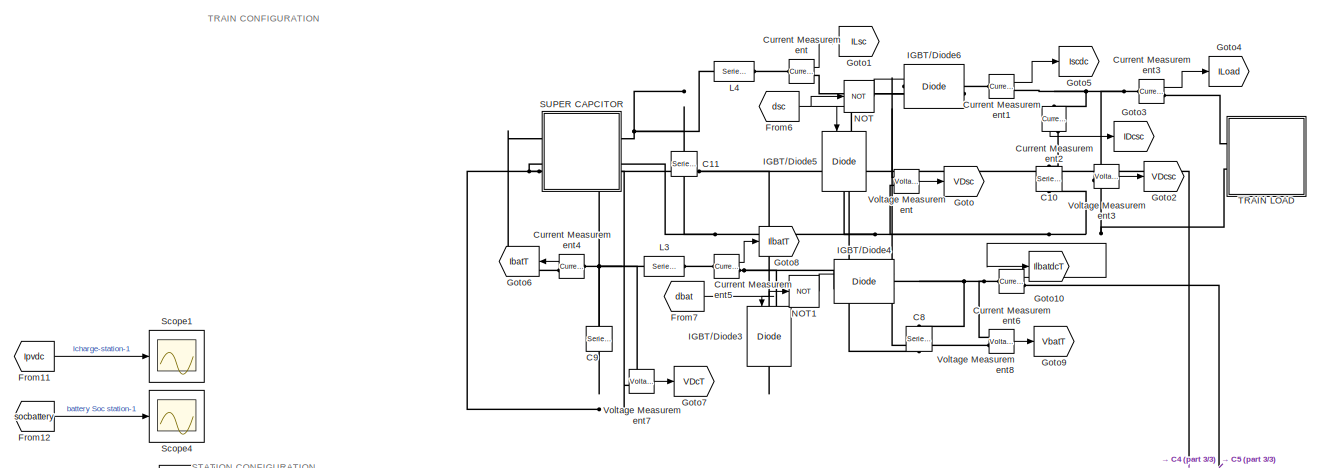
[diagram: root canvas - part 1/3, top center region]
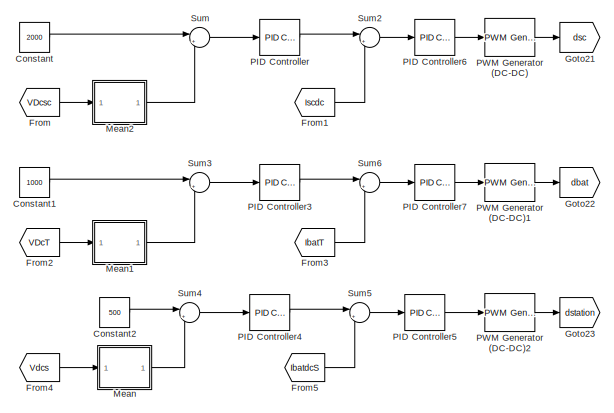
[diagram: root canvas - part 2/3, middle right region]
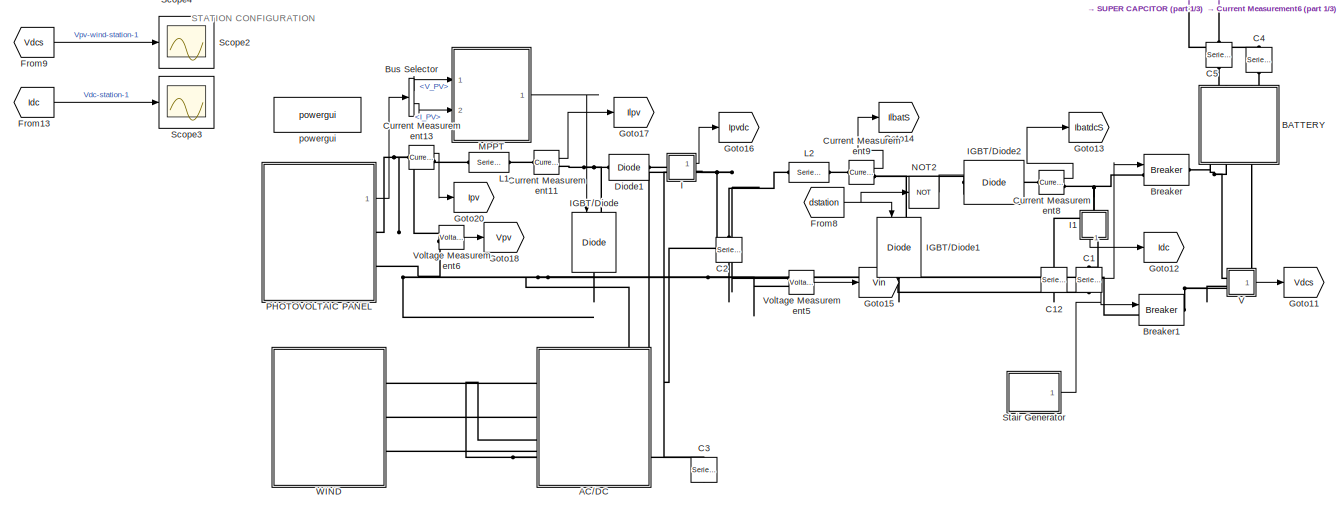
[diagram: root canvas - part 3/3, bottom center region]
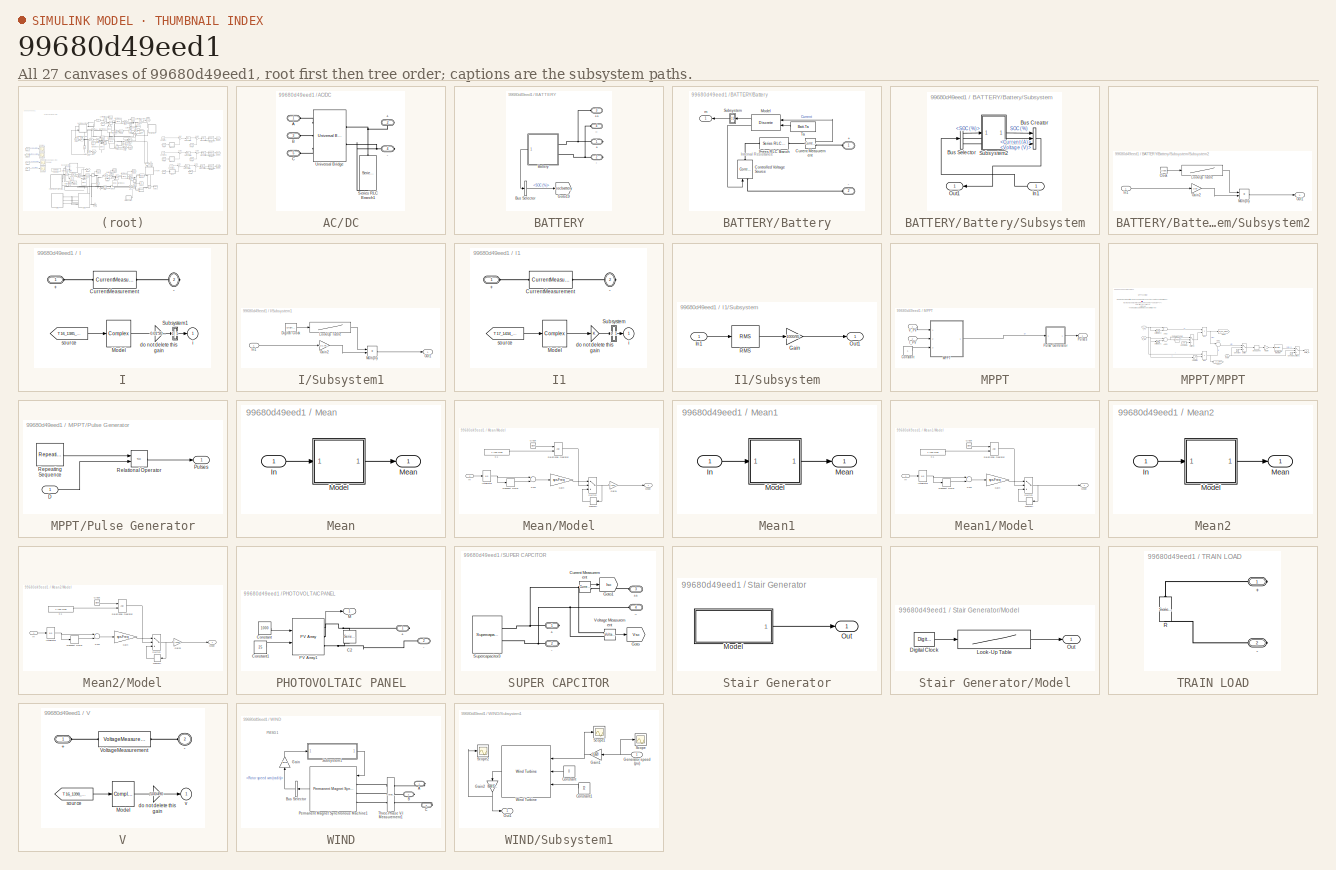
[diagram: thumbnail index - all 27 canvases of the model, root first then tree order]
MODEL slx_99680d49eed1
KIND model
CONFIG AbsTol = auto
CONFIG EnableMultiTasking = off
CONFIG FixedStep = auto
CONFIG MaxStep = auto
CONFIG MinStep = auto
CONFIG RelTol = 50e-6
CONFIG SampleTimeConstraint = Unconstrained
CONFIG Solver = VariableStepAuto
CONFIG SolverName = VariableStepAuto
CONFIG StartTime = 0.0
CONFIG StopTime = 10
BLOCK [SubSystem] AC//DC
  Ports = [0, 0, 0, 0, 0, 3, 2]
  RequestExecContextInheritance = off
BLOCK [PMIOPort] AC//DC/+
  Port = 2
  Side = Right
BLOCK [PMIOPort] AC//DC/-
  Port = 4
  Side = Right
BLOCK [PMIOPort] AC//DC/A
  Side = Left
BLOCK [PMIOPort] AC//DC/B
  Port = 3
  Side = Left
BLOCK [PMIOPort] AC//DC/C
  Port = 5
  Side = Left
BLOCK [Reference] AC//DC/Series RLC Branch1  REF=powerlib/Elements/Series RLC Branch
  Ports = [0, 0, 0, 0, 0, 1, 1]
  SourceBlock = powerlib/Elements/Series RLC Branch
  SourceProductBaseCode = PS
  SourceType = Series RLC Branch
BLOCK [Reference] AC//DC/Universal Bridge  REF=powerlib/Power
Electronics/Universal Bridge
  Ports = [0, 0, 0, 0, 0, 3, 2]
  SourceBlock = powerlib/Power\nElectronics/Universal Bridge
  SourceProductBaseCode = PS
  SourceType = Universal Bridge
BLOCK [SubSystem] BATTERY
  Ports = [0, 0, 0, 0, 0, 2, 2]
  RequestExecContextInheritance = off
BLOCK [PMIOPort] BATTERY/+
  Side = Right
BLOCK [PMIOPort] BATTERY/++
  Port = 3
  Side = Left
BLOCK [PMIOPort] BATTERY/-
  Port = 2
  Side = Right
BLOCK [PMIOPort] BATTERY/--
  Port = 4
  Side = Left
BLOCK [SubSystem] BATTERY/Battery
  CloseFcn = sps_rtmsupport('CloseFcn',gcbh);
  CopyFcn = sps_rtmsupport('CopyFcn',gcbh);
  DeleteFcn = sps_rtmsupport('DeleteFcn',gcbh);
  DialogController = POWERSYS.PowerSysDialog
  InitFcn = BatteryCback(gcb,1)
  LoadFcn = sps_rtmsupport('LoadFcn',gcbh); BatteryLoadFcn(gcb)
  ModelCloseFcn = sps_rtmsupport('ModelCloseFcn',gcbh);
  NameChangeFcn = sps_rtmsupport('NameChangeFcn',gcbh);
  OpenFcn = sps_rtmsupport('OpenFcn',gcbh, [1,2,3,4,9,18]);
  Ports = [0, 1, 0, 0, 0, 2]
  PostSaveFcn = sps_rtmsupport('PostSaveFcn',gcbh);
  PreCopyFcn = sps_rtmsupport('PreCopyFcn',gcbh);
  PreDeleteFcn = sps_rtmsupport('PreDeleteFcn',gcbh);
  PreSaveFcn = sps_rtmsupport('PreSaveFcn',gcbh);
  RequestExecContextInheritance = off
  StartFcn = sps_rtmsupport('StartFcn',gcbh);
  StopFcn = sps_rtmsupport('StopFcn',gcbh);
  UndoDeleteFcn = sps_rtmsupport('UndoDeleteFcn',gcbh);
BLOCK [PMIOPort] BATTERY/Battery/+
  Side = Left
  Tag = PMCPort
BLOCK [PMIOPort] BATTERY/Battery/-
  Port = 2
  Side = Left
  Tag = PMCPort
BLOCK [Reference] BATTERY/Battery/Controlled Voltage Source  REF=powerlib/Electrical
Sources/Controlled Voltage Source
  Ports = [1, 0, 0, 0, 0, 1, 1]
  SourceBlock = powerlib/Electrical\nSources/Controlled Voltage Source
  SourceProductBaseCode = PS
  SourceProductName = Simscape Power Systems
  SourceType = Controlled Voltage Source
BLOCK [Reference] BATTERY/Battery/Current Measurement  REF=powerlib/Measurements/Current Measurement
  Ports = [0, 1, 0, 0, 0, 1, 1]
  SourceBlock = powerlib/Measurements/Current Measurement
  SourceProductBaseCode = PS
  SourceProductName = Simscape Power Systems
  SourceType = Current Measurement
BLOCK [Reference] BATTERY/Battery/Model  REF=spsBatteryModel/Discrete
  Ports = [2, 2]
  SourceBlock = spsBatteryModel/Discrete
  SourceType = SubSystem
BLOCK [Reference] BATTERY/Battery/Series RLC Branch  REF=powerlib/Elements/Series RLC Branch
  Ports = [0, 0, 0, 0, 0, 1, 1]
  SourceBlock = powerlib/Elements/Series RLC Branch
  SourceProductBaseCode = PS
  SourceProductName = Simscape Power Systems
  SourceType = Series RLC Branch
BLOCK [SubSystem] BATTERY/Battery/Subsystem
  Permissions = NoReadOrWrite
  Ports = [1, 1]
  RequestExecContextInheritance = off
BLOCK [BusCreator] BATTERY/Battery/Subsystem/Bus Creator
  DisplayOption = bar
  InheritFromInputs = on
  Inputs = 3
  Ports = [3, 1]
BLOCK [BusSelector] BATTERY/Battery/Subsystem/Bus Selector
  OutputAsBus = off
  OutputSignals = SOC (%),Current (A),Voltage (V)
  Ports = [1, 3]
BLOCK [Inport] BATTERY/Battery/Subsystem/In1
  IconDisplay = Port number
BLOCK [Outport] BATTERY/Battery/Subsystem/Out1
  IconDisplay = Port number
BLOCK [SubSystem] BATTERY/Battery/Subsystem/Subsystem2
  Ports = [1, 1]
  RequestExecContextInheritance = off
BLOCK [Clock] BATTERY/Battery/Subsystem/Subsystem2/Clock
BLOCK [Gain] BATTERY/Battery/Subsystem/Subsystem2/Gain2
  Gain = 1/30
  OutDataTypeStr = Inherit: Inherit via internal rule
  ParamDataTypeStr = Inherit: Inherit via internal rule
  SaturateOnIntegerOverflow = off
BLOCK [Inport] BATTERY/Battery/Subsystem/Subsystem2/In1
  IconDisplay = Port number
BLOCK [Lookup] BATTERY/Battery/Subsystem/Subsystem2/Look-Up Table
  InputValues = [0 50 350 650 800 950 1000]*1/100
  Table = [30 31 35 45 47 47.5 49.5]
BLOCK [Product] BATTERY/Battery/Subsystem/Subsystem2/Multiply
  InputSameDT = off
  OutDataTypeStr = Inherit: Inherit via internal rule
  Ports = [2, 1]
  RndMeth = Floor
  SaturateOnIntegerOverflow = off
BLOCK [Outport] BATTERY/Battery/Subsystem/Subsystem2/Out1
  IconDisplay = Port number
BLOCK [Constant] BATTERY/Battery/Ta
  Value = Batt.Ta
BLOCK [Outport] BATTERY/Battery/m
  IconDisplay = Port number
BLOCK [BusSelector] BATTERY/Bus Selector
  OutputAsBus = off
  OutputSignals = SOC (%)
  Ports = [1, 1]
BLOCK [Goto] BATTERY/Goto19
  GotoTag = socbattery
  TagVisibility = global
BLOCK [Reference] Breaker  REF=powerlib/Elements/Breaker
  Ports = [1, 0, 0, 0, 0, 1, 1]
  SourceBlock = powerlib/Elements/Breaker
  SourceProductBaseCode = PS
  SourceProductName = Simscape Power Systems
  SourceType = Breaker
BLOCK [Reference] Breaker1  REF=powerlib/Elements/Breaker
  Ports = [1, 0, 0, 0, 0, 1, 1]
  SourceBlock = powerlib/Elements/Breaker
  SourceProductBaseCode = PS
  SourceProductName = Simscape Power Systems
  SourceType = Breaker
BLOCK [BusSelector] Bus Selector
  OutputAsBus = off
  OutputSignals = V_PV,I_PV
  Ports = [1, 2]
BLOCK [Reference] C1  REF=powerlib/Elements/Series RLC Branch
  AttributesFormatString = \n
  Ports = [0, 0, 0, 0, 0, 1, 1]
  SourceBlock = powerlib/Elements/Series RLC Branch
  SourceProductBaseCode = PS
  SourceProductName = Simscape Power Systems
  SourceType = Series RLC Branch
BLOCK [Reference] C10  REF=powerlib/Elements/Series RLC Branch
  AttributesFormatString = \n
  Ports = [0, 0, 0, 0, 0, 1, 1]
  SourceBlock = powerlib/Elements/Series RLC Branch
  SourceProductBaseCode = PS
  SourceProductName = Simscape Power Systems
  SourceType = Series RLC Branch
BLOCK [Reference] C11  REF=powerlib/Elements/Series RLC Branch
  AttributesFormatString = \n
  Ports = [0, 0, 0, 0, 0, 1, 1]
  SourceBlock = powerlib/Elements/Series RLC Branch
  SourceProductBaseCode = PS
  SourceProductName = Simscape Power Systems
  SourceType = Series RLC Branch
BLOCK [Reference] C12  REF=powerlib/Elements/Series RLC Branch
  AttributesFormatString = \n
  Ports = [0, 0, 0, 0, 0, 1, 1]
  SourceBlock = powerlib/Elements/Series RLC Branch
  SourceProductBaseCode = PS
  SourceProductName = Simscape Power Systems
  SourceType = Series RLC Branch
BLOCK [Reference] C2  REF=powerlib/Elements/Series RLC Branch
  AttributesFormatString = \n
  Ports = [0, 0, 0, 0, 0, 1, 1]
  SourceBlock = powerlib/Elements/Series RLC Branch
  SourceProductBaseCode = PS
  SourceProductName = Simscape Power Systems
  SourceType = Series RLC Branch
BLOCK [Reference] C3  REF=powerlib/Elements/Series RLC Branch
  AttributesFormatString = \n
  Ports = [0, 0, 0, 0, 0, 1, 1]
  SourceBlock = powerlib/Elements/Series RLC Branch
  SourceProductBaseCode = PS
  SourceProductName = Simscape Power Systems
  SourceType = Series RLC Branch
BLOCK [Reference] C4  REF=powerlib/Elements/Series RLC Branch
  AttributesFormatString = \n
  Ports = [0, 0, 0, 0, 0, 1, 1]
  SourceBlock = powerlib/Elements/Series RLC Branch
  SourceProductBaseCode = PS
  SourceProductName = Simscape Power Systems
  SourceType = Series RLC Branch
BLOCK [Reference] C5  REF=powerlib/Elements/Series RLC Branch
  AttributesFormatString = \n
  Ports = [0, 0, 0, 0, 0, 1, 1]
  SourceBlock = powerlib/Elements/Series RLC Branch
  SourceProductBaseCode = PS
  SourceProductName = Simscape Power Systems
  SourceType = Series RLC Branch
BLOCK [Reference] C8  REF=powerlib/Elements/Series RLC Branch
  AttributesFormatString = \n
  Ports = [0, 0, 0, 0, 0, 1, 1]
  SourceBlock = powerlib/Elements/Series RLC Branch
  SourceProductBaseCode = PS
  SourceProductName = Simscape Power Systems
  SourceType = Series RLC Branch
BLOCK [Reference] C9  REF=powerlib/Elements/Series RLC Branch
  AttributesFormatString = \n
  Ports = [0, 0, 0, 0, 0, 1, 1]
  SourceBlock = powerlib/Elements/Series RLC Branch
  SourceProductBaseCode = PS
  SourceProductName = Simscape Power Systems
  SourceType = Series RLC Branch
BLOCK [Constant] Constant
  Value = 2000
BLOCK [Constant] Constant1
  Value = 1000
BLOCK [Constant] Constant2
  Value = 500
BLOCK [Reference] Current Measurement  REF=powerlib/Measurements/Current Measurement
  Ports = [0, 1, 0, 0, 0, 1, 1]
  SourceBlock = powerlib/Measurements/Current Measurement
  SourceProductBaseCode = PS
  SourceProductName = Simscape Power Systems
  SourceType = Current Measurement
  UserDataPersistent = on
BLOCK [Reference] Current Measurement1  REF=powerlib/Measurements/Current Measurement
  Ports = [0, 1, 0, 0, 0, 1, 1]
  SourceBlock = powerlib/Measurements/Current Measurement
  SourceProductBaseCode = PS
  SourceProductName = Simscape Power Systems
  SourceType = Current Measurement
  UserDataPersistent = on
BLOCK [Reference] Current Measurement11  REF=powerlib/Measurements/Current Measurement
  Ports = [0, 1, 0, 0, 0, 1, 1]
  SourceBlock = powerlib/Measurements/Current Measurement
  SourceProductBaseCode = PS
  SourceProductName = Simscape Power Systems
  SourceType = Current Measurement
  UserDataPersistent = on
BLOCK [Reference] Current Measurement13  REF=powerlib/Measurements/Current Measurement
  Ports = [0, 1, 0, 0, 0, 1, 1]
  SourceBlock = powerlib/Measurements/Current Measurement
  SourceProductBaseCode = PS
  SourceProductName = Simscape Power Systems
  SourceType = Current Measurement
  UserDataPersistent = on
BLOCK [Reference] Current Measurement2  REF=powerlib/Measurements/Current Measurement
  Ports = [0, 1, 0, 0, 0, 1, 1]
  SourceBlock = powerlib/Measurements/Current Measurement
  SourceProductBaseCode = PS
  SourceProductName = Simscape Power Systems
  SourceType = Current Measurement
  UserDataPersistent = on
BLOCK [Reference] Current Measurement3  REF=powerlib/Measurements/Current Measurement
  Ports = [0, 1, 0, 0, 0, 1, 1]
  SourceBlock = powerlib/Measurements/Current Measurement
  SourceProductBaseCode = PS
  SourceProductName = Simscape Power Systems
  SourceType = Current Measurement
  UserDataPersistent = on
BLOCK [Reference] Current Measurement4  REF=powerlib/Measurements/Current Measurement
  Ports = [0, 1, 0, 0, 0, 1, 1]
  SourceBlock = powerlib/Measurements/Current Measurement
  SourceProductBaseCode = PS
  SourceProductName = Simscape Power Systems
  SourceType = Current Measurement
  UserDataPersistent = on
BLOCK [Reference] Current Measurement5  REF=powerlib/Measurements/Current Measurement
  Ports = [0, 1, 0, 0, 0, 1, 1]
  SourceBlock = powerlib/Measurements/Current Measurement
  SourceProductBaseCode = PS
  SourceProductName = Simscape Power Systems
  SourceType = Current Measurement
  UserDataPersistent = on
BLOCK [Reference] Current Measurement6  REF=powerlib/Measurements/Current Measurement
  Ports = [0, 1, 0, 0, 0, 1, 1]
  SourceBlock = powerlib/Measurements/Current Measurement
  SourceProductBaseCode = PS
  SourceProductName = Simscape Power Systems
  SourceType = Current Measurement
  UserDataPersistent = on
BLOCK [Reference] Current Measurement8  REF=powerlib/Measurements/Current Measurement
  Ports = [0, 1, 0, 0, 0, 1, 1]
  SourceBlock = powerlib/Measurements/Current Measurement
  SourceProductBaseCode = PS
  SourceProductName = Simscape Power Systems
  SourceType = Current Measurement
  UserDataPersistent = on
BLOCK [Reference] Current Measurement9  REF=powerlib/Measurements/Current Measurement
  Ports = [0, 1, 0, 0, 0, 1, 1]
  SourceBlock = powerlib/Measurements/Current Measurement
  SourceProductBaseCode = PS
  SourceProductName = Simscape Power Systems
  SourceType = Current Measurement
  UserDataPersistent = on
BLOCK [Reference] Diode1  REF=powerlib/Power
Electronics/Diode
  Ports = [0, 0, 0, 0, 0, 1, 1]
  SourceBlock = powerlib/Power\nElectronics/Diode
  SourceProductBaseCode = PS
  SourceProductName = Simscape Power Systems
  SourceType = Diode
BLOCK [From] From
  GotoTag = VDcsc
  TagVisibility = global
BLOCK [From] From1
  GotoTag = Iscdc
  TagVisibility = global
BLOCK [From] From11
  GotoTag = Ipvdc
  TagVisibility = global
BLOCK [From] From12
  GotoTag = socbattery
  TagVisibility = global
BLOCK [From] From13
  GotoTag = Idc
  TagVisibility = global
BLOCK [From] From2
  GotoTag = VDcT
  TagVisibility = global
BLOCK [From] From3
  GotoTag = IbatT
  TagVisibility = global
BLOCK [From] From4
  GotoTag = Vdcs
  TagVisibility = global
BLOCK [From] From5
  GotoTag = IbatdcS
  TagVisibility = global
BLOCK [From] From6
  GotoTag = dsc
  TagVisibility = global
BLOCK [From] From7
  GotoTag = dbat
  TagVisibility = global
BLOCK [From] From8
  GotoTag = dstation
  TagVisibility = global
BLOCK [From] From9
  GotoTag = Vdcs
  TagVisibility = global
BLOCK [Goto] Goto
  GotoTag = VDsc
  TagVisibility = global
BLOCK [Goto] Goto1
  GotoTag = ILsc
  TagVisibility = global
BLOCK [Goto] Goto10
  GotoTag = IlbatdcT
  TagVisibility = global
BLOCK [Goto] Goto11
  GotoTag = Vdcs
  TagVisibility = global
BLOCK [Goto] Goto12
  GotoTag = Idc
  TagVisibility = global
BLOCK [Goto] Goto13
  GotoTag = IbatdcS
  TagVisibility = global
BLOCK [Goto] Goto14
  GotoTag = IlbatS
  TagVisibility = global
BLOCK [Goto] Goto15
  GotoTag = Vin
  TagVisibility = global
BLOCK [Goto] Goto16
  GotoTag = Ipvdc
  TagVisibility = global
BLOCK [Goto] Goto17
  GotoTag = Ilpv
  TagVisibility = global
BLOCK [Goto] Goto18
  GotoTag = Vpv
  TagVisibility = global
BLOCK [Goto] Goto2
  GotoTag = VDcsc
  TagVisibility = global
BLOCK [Goto] Goto20
  GotoTag = Ipv
  TagVisibility = global
BLOCK [Goto] Goto21
  GotoTag = dsc
  TagVisibility = global
BLOCK [Goto] Goto22
  GotoTag = dbat
  TagVisibility = global
BLOCK [Goto] Goto23
  GotoTag = dstation
  TagVisibility = global
BLOCK [Goto] Goto3
  GotoTag = IDcsc
  TagVisibility = global
BLOCK [Goto] Goto4
  GotoTag = ILoad
  TagVisibility = global
BLOCK [Goto] Goto5
  GotoTag = Iscdc
  TagVisibility = global
BLOCK [Goto] Goto6
  GotoTag = IbatT
  TagVisibility = global
BLOCK [Goto] Goto7
  GotoTag = VDcT
  TagVisibility = global
BLOCK [Goto] Goto8
  GotoTag = IlbatT
  TagVisibility = global
BLOCK [Goto] Goto9
  GotoTag = VbatT
  TagVisibility = global
BLOCK [SubSystem] I
  CloseFcn = sps_rtmsupport('CloseFcn',gcbh);
  CopyFcn = sps_rtmsupport('CopyFcn',gcbh); powericon('psbloadfunction',gcb,'Measurement Block','UpdateGotoTag');
  DeleteFcn = sps_rtmsupport('DeleteFcn',gcbh);
  DialogController = POWERSYS.PowerSysDialog
  LoadFcn = sps_rtmsupport('LoadFcn',gcbh);
  ModelCloseFcn = sps_rtmsupport('ModelCloseFcn',gcbh);
  NameChangeFcn = sps_rtmsupport('NameChangeFcn',gcbh);        \npowericon('SetNewGotoTag',[gcb,'/source'],-2);
  OpenFcn = sps_rtmsupport('OpenFcn',gcbh, [1 -2]);
  Ports = [0, 1, 0, 0, 0, 1, 1]
  PostSaveFcn = sps_rtmsupport('PostSaveFcn',gcbh);
  PreCopyFcn = sps_rtmsupport('PreCopyFcn',gcbh);
  PreDeleteFcn = sps_rtmsupport('PreDeleteFcn',gcbh);
  PreSaveFcn = sps_rtmsupport('PreSaveFcn',gcbh);
  RequestExecContextInheritance = off
  StartFcn = sps_rtmsupport('StartFcn',gcbh);
  StopFcn = sps_rtmsupport('StopFcn',gcbh);
  UndoDeleteFcn = sps_rtmsupport('UndoDeleteFcn',gcbh);
  UserDataPersistent = on
BLOCK [PMIOPort] I/+
  Side = Left
BLOCK [PMIOPort] I/-
  Port = 2
  Side = Right
BLOCK [Reference] I/CurrentMeasurement  REF=powerlib/Measurements/Current Measurement/CurrentMeasurement
  Ports = [0, 0, 0, 0, 0, 1, 1]
  SourceBlock = powerlib/Measurements/Current Measurement/CurrentMeasurement
  SourceProductBaseCode = PS
  SourceProductName = Simscape Power Systems
  SourceType = InnerPowersysBlock
BLOCK [Reference] I/Model  REF=spsMeasurementModel/Complex
  Ports = [1, 1]
  SourceBlock = spsMeasurementModel/Complex
  SourceType = SubSystem
BLOCK [SubSystem] I/Subsystem1
  Permissions = NoReadOrWrite
  Ports = [1, 1]
  RequestExecContextInheritance = off
BLOCK [DigitalClock] I/Subsystem1/Digital Clock
  SampleTime = -1
BLOCK [Gain] I/Subsystem1/Gain2
  Gain = -1/1.75e-11
  OutDataTypeStr = Inherit: Inherit via internal rule
  ParamDataTypeStr = Inherit: Inherit via internal rule
  SaturateOnIntegerOverflow = off
BLOCK [Inport] I/Subsystem1/In1
  IconDisplay = Port number
BLOCK [Lookup] I/Subsystem1/Look-Up Table
  InputValues = [0 5 10 20 50 55 58 100 110 150 220 230 380 400 600 750 800 850 1000]*1/100
  Table = [0 1000 2000 2400 2500 2100 2500 3000 2800 2400 2100 2050 2050 2500 2600 1700 1650 1200 1600]
BLOCK [Product] I/Subsystem1/Multiply
  InputSameDT = off
  OutDataTypeStr = Inherit: Inherit via internal rule
  Ports = [2, 1]
  RndMeth = Floor
  SaturateOnIntegerOverflow = off
BLOCK [Outport] I/Subsystem1/Out1
  IconDisplay = Port number
BLOCK [Gain] I/do not delete this gain
  Gain = 0.01*3010/3760
  OutDataTypeStr = Inherit: Inherit via internal rule
  ParamDataTypeStr = Inherit: Inherit via internal rule
  SaturateOnIntegerOverflow = off
BLOCK [Outport] I/i
  IconDisplay = Port number
  InitialOutput = 0
BLOCK [From] I/source
  GotoTag = T16_1385_561729086292
  TagVisibility = global
BLOCK [SubSystem] I1
  CloseFcn = sps_rtmsupport('CloseFcn',gcbh);
  CopyFcn = sps_rtmsupport('CopyFcn',gcbh); powericon('psbloadfunction',gcb,'Measurement Block','UpdateGotoTag');
  DeleteFcn = sps_rtmsupport('DeleteFcn',gcbh);
  DialogController = POWERSYS.PowerSysDialog
  LoadFcn = sps_rtmsupport('LoadFcn',gcbh);
  ModelCloseFcn = sps_rtmsupport('ModelCloseFcn',gcbh);
  NameChangeFcn = sps_rtmsupport('NameChangeFcn',gcbh);        \npowericon('SetNewGotoTag',[gcb,'/source'],-2);
  OpenFcn = sps_rtmsupport('OpenFcn',gcbh, [1 -2]);
  Ports = [0, 1, 0, 0, 0, 1, 1]
  PostSaveFcn = sps_rtmsupport('PostSaveFcn',gcbh);
  PreCopyFcn = sps_rtmsupport('PreCopyFcn',gcbh);
  PreDeleteFcn = sps_rtmsupport('PreDeleteFcn',gcbh);
  PreSaveFcn = sps_rtmsupport('PreSaveFcn',gcbh);
  RequestExecContextInheritance = off
  StartFcn = sps_rtmsupport('StartFcn',gcbh);
  StopFcn = sps_rtmsupport('StopFcn',gcbh);
  UndoDeleteFcn = sps_rtmsupport('UndoDeleteFcn',gcbh);
  UserDataPersistent = on
BLOCK [PMIOPort] I1/+
  Side = Left
BLOCK [PMIOPort] I1/-
  Port = 2
  Side = Right
BLOCK [Reference] I1/CurrentMeasurement  REF=powerlib/Measurements/Current Measurement/CurrentMeasurement
  Ports = [0, 0, 0, 0, 0, 1, 1]
  SourceBlock = powerlib/Measurements/Current Measurement/CurrentMeasurement
  SourceProductBaseCode = PS
  SourceProductName = Simscape Power Systems
  SourceType = InnerPowersysBlock
BLOCK [Reference] I1/Model  REF=spsMeasurementModel/Complex
  Ports = [1, 1]
  SourceBlock = spsMeasurementModel/Complex
  SourceType = SubSystem
BLOCK [SubSystem] I1/Subsystem
  Permissions = NoReadOrWrite
  Ports = [1, 1]
  RequestExecContextInheritance = off
BLOCK [Gain] I1/Subsystem/Gain
  Gain = 1000/95
  OutDataTypeStr = Inherit: Inherit via internal rule
  ParamDataTypeStr = Inherit: Inherit via internal rule
  SaturateOnIntegerOverflow = off
BLOCK [Inport] I1/Subsystem/In1
  IconDisplay = Port number
BLOCK [Outport] I1/Subsystem/Out1
  IconDisplay = Port number
BLOCK [Reference] I1/Subsystem/RMS  REF=powerlib_meascontrol/Measurements/RMS
  Ports = [1, 1]
  SourceBlock = powerlib_meascontrol/Measurements/RMS
  SourceProductBaseCode = PS
  SourceProductName = Simscape Power Systems
  SourceType = RMS
BLOCK [Gain] I1/do not delete this gain
  OutDataTypeStr = Inherit: Inherit via internal rule
  ParamDataTypeStr = Inherit: Inherit via internal rule
  SaturateOnIntegerOverflow = off
BLOCK [Outport] I1/i
  IconDisplay = Port number
  InitialOutput = 0
BLOCK [From] I1/source
  GotoTag = T17_1434_634294084706
  TagVisibility = global
BLOCK [Reference] IGBT//Diode  REF=powerlib/Power
Electronics/IGBT//Diode
  Ports = [1, 0, 0, 0, 0, 1, 1]
  SourceBlock = powerlib/Power\nElectronics/IGBT//Diode
  SourceProductBaseCode = PS
  SourceProductName = Simscape Power Systems
  SourceType = IGBT/Diode
BLOCK [Reference] IGBT//Diode1  REF=powerlib/Power
Electronics/IGBT//Diode
  Ports = [1, 0, 0, 0, 0, 1, 1]
  SourceBlock = powerlib/Power\nElectronics/IGBT//Diode
  SourceProductBaseCode = PS
  SourceProductName = Simscape Power Systems
  SourceType = IGBT/Diode
BLOCK [Reference] IGBT//Diode2  REF=powerlib/Power
Electronics/IGBT//Diode
  Ports = [1, 0, 0, 0, 0, 1, 1]
  SourceBlock = powerlib/Power\nElectronics/IGBT//Diode
  SourceProductBaseCode = PS
  SourceProductName = Simscape Power Systems
  SourceType = IGBT/Diode
BLOCK [Reference] IGBT//Diode3  REF=powerlib/Power
Electronics/IGBT//Diode
  Ports = [1, 0, 0, 0, 0, 1, 1]
  SourceBlock = powerlib/Power\nElectronics/IGBT//Diode
  SourceProductBaseCode = PS
  SourceProductName = Simscape Power Systems
  SourceType = IGBT/Diode
BLOCK [Reference] IGBT//Diode4  REF=powerlib/Power
Electronics/IGBT//Diode
  Ports = [1, 0, 0, 0, 0, 1, 1]
  SourceBlock = powerlib/Power\nElectronics/IGBT//Diode
  SourceProductBaseCode = PS
  SourceProductName = Simscape Power Systems
  SourceType = IGBT/Diode
BLOCK [Reference] IGBT//Diode5  REF=powerlib/Power
Electronics/IGBT//Diode
  Ports = [1, 0, 0, 0, 0, 1, 1]
  SourceBlock = powerlib/Power\nElectronics/IGBT//Diode
  SourceProductBaseCode = PS
  SourceProductName = Simscape Power Systems
  SourceType = IGBT/Diode
BLOCK [Reference] IGBT//Diode6  REF=powerlib/Power
Electronics/IGBT//Diode
  Ports = [1, 0, 0, 0, 0, 1, 1]
  SourceBlock = powerlib/Power\nElectronics/IGBT//Diode
  SourceProductBaseCode = PS
  SourceProductName = Simscape Power Systems
  SourceType = IGBT/Diode
BLOCK [Reference] L1  REF=powerlib/Elements/Series RLC Branch
  Ports = [0, 0, 0, 0, 0, 1, 1]
  SourceBlock = powerlib/Elements/Series RLC Branch
  SourceProductBaseCode = PS
  SourceProductName = Simscape Power Systems
  SourceType = Series RLC Branch
BLOCK [Reference] L2  REF=powerlib/Elements/Series RLC Branch
  Ports = [0, 0, 0, 0, 0, 1, 1]
  SourceBlock = powerlib/Elements/Series RLC Branch
  SourceProductBaseCode = PS
  SourceProductName = Simscape Power Systems
  SourceType = Series RLC Branch
BLOCK [Reference] L3  REF=powerlib/Elements/Series RLC Branch
  Ports = [0, 0, 0, 0, 0, 1, 1]
  SourceBlock = powerlib/Elements/Series RLC Branch
  SourceProductBaseCode = PS
  SourceProductName = Simscape Power Systems
  SourceType = Series RLC Branch
BLOCK [Reference] L4  REF=powerlib/Elements/Series RLC Branch
  Ports = [0, 0, 0, 0, 0, 1, 1]
  SourceBlock = powerlib/Elements/Series RLC Branch
  SourceProductBaseCode = PS
  SourceProductName = Simscape Power Systems
  SourceType = Series RLC Branch
BLOCK [SubSystem] MPPT
  Ports = [2, 1]
  RequestExecContextInheritance = off
BLOCK [Constant] MPPT/Constant
BLOCK [Inport] MPPT/I_PV
  IconDisplay = Port number
  Port = 2
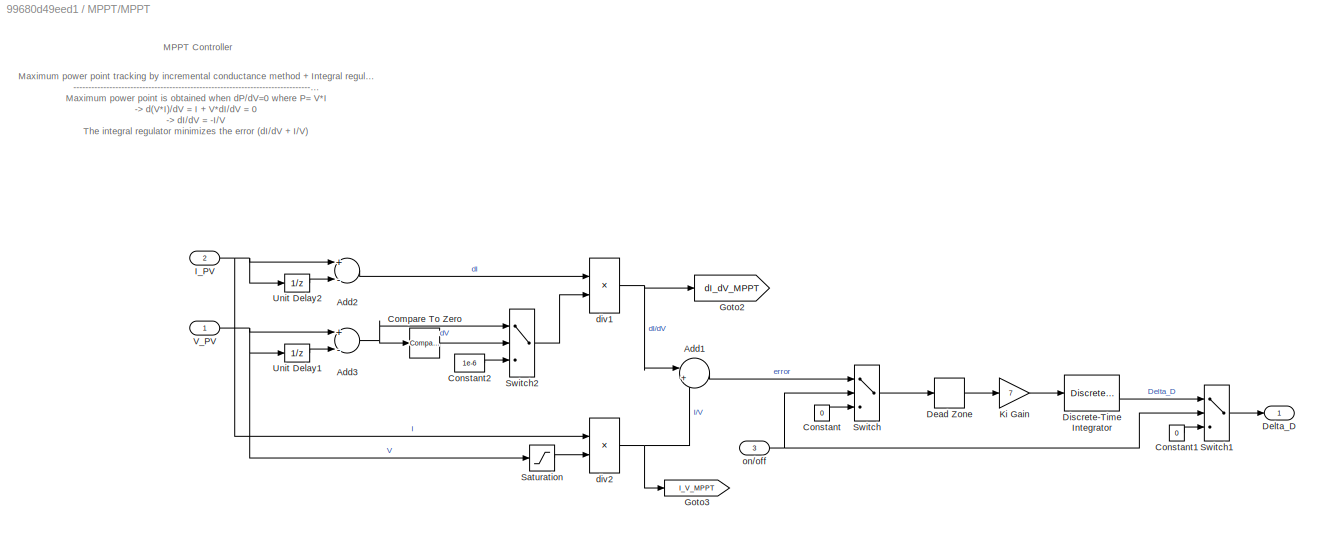
BLOCK [SubSystem] MPPT/MPPT
  Ports = [3, 1]
  RequestExecContextInheritance = off
BLOCK [Sum] MPPT/MPPT/Add1
  IconShape = round
  InputSameDT = off
  Inputs = |++
  OutDataTypeStr = Inherit: Inherit via internal rule
  Ports = [2, 1]
  SaturateOnIntegerOverflow = off
BLOCK [Sum] MPPT/MPPT/Add2
  InputSameDT = off
  Inputs = +-
  OutDataTypeStr = Inherit: Inherit via internal rule
  Ports = [2, 1]
  SaturateOnIntegerOverflow = off
BLOCK [Sum] MPPT/MPPT/Add3
  InputSameDT = off
  Inputs = +-
  OutDataTypeStr = Inherit: Inherit via internal rule
  Ports = [2, 1]
  SaturateOnIntegerOverflow = off
BLOCK [Reference] MPPT/MPPT/Compare To Zero  REF=simulink/Logic and Bit
Operations/Compare
To Zero
  Ports = [1, 1]
  SourceBlock = simulink/Logic and Bit\nOperations/Compare\nTo Zero
  SourceProductBaseCode = SL
  SourceProductName = Simulink
  SourceType = Compare To Zero
BLOCK [Constant] MPPT/MPPT/Constant
  Value = 0
BLOCK [Constant] MPPT/MPPT/Constant1
  Value = 0
BLOCK [Constant] MPPT/MPPT/Constant2
  Value = 1e-6
BLOCK [DeadZone] MPPT/MPPT/Dead Zone
  LowerValue = -0.02
  UpperValue = +0.02
BLOCK [Outport] MPPT/MPPT/Delta_D
  IconDisplay = Port number
BLOCK [DiscreteIntegrator] MPPT/MPPT/Discrete-Time Integrator
  ICPrevOutput = DiscIntNeverNeededParam
  ICPrevScaledInput = DiscIntNeverNeededParam
  LimitOutput = on
  LowerSaturationLimit = -1
  Ports = [1, 1]
  SampleTime = Ts_Control
  UpperSaturationLimit = 1
  gainval = 1
BLOCK [Goto] MPPT/MPPT/Goto2
  GotoTag = dI_dV_MPPT
  TagVisibility = global
BLOCK [Goto] MPPT/MPPT/Goto3
  GotoTag = I_V_MPPT
  TagVisibility = global
BLOCK [Inport] MPPT/MPPT/I_PV
  IconDisplay = Port number
  Port = 2
BLOCK [Gain] MPPT/MPPT/Ki Gain
  Gain = 7
  OutDataTypeStr = Inherit: Inherit via internal rule
  ParamDataTypeStr = Inherit: Inherit via internal rule
  SaturateOnIntegerOverflow = off
BLOCK [Saturate] MPPT/MPPT/Saturation
  InputPortMap = u0
  LowerLimit = eps
  Ports = [1, 1]
  UpperLimit = inf
BLOCK [Switch] MPPT/MPPT/Switch
  InputSameDT = off
  SaturateOnIntegerOverflow = off
  Threshold = 0.5
BLOCK [Switch] MPPT/MPPT/Switch1
  InputSameDT = off
  SaturateOnIntegerOverflow = off
  Threshold = 0.5
BLOCK [Switch] MPPT/MPPT/Switch2
  Criteria = u2 ~= 0
  InputSameDT = off
  SaturateOnIntegerOverflow = off
BLOCK [UnitDelay] MPPT/MPPT/Unit Delay1
  InputProcessing = Elements as channels (sample based)
  SampleTime = Ts_Control
BLOCK [UnitDelay] MPPT/MPPT/Unit Delay2
  InputProcessing = Elements as channels (sample based)
  SampleTime = Ts_Control
BLOCK [Inport] MPPT/MPPT/V_PV
  IconDisplay = Port number
BLOCK [Product] MPPT/MPPT/div1
  InputSameDT = off
  Inputs = */
  OutDataTypeStr = Inherit: Inherit via internal rule
  Ports = [2, 1]
  SaturateOnIntegerOverflow = off
BLOCK [Product] MPPT/MPPT/div2
  InputSameDT = off
  Inputs = */
  OutDataTypeStr = Inherit: Inherit via internal rule
  Ports = [2, 1]
  SaturateOnIntegerOverflow = off
BLOCK [Inport] MPPT/MPPT/on//off
  IconDisplay = Port number
  Port = 3
BLOCK [SubSystem] MPPT/Pulse Generator
  Ports = [1, 1]
  RequestExecContextInheritance = off
BLOCK [Inport] MPPT/Pulse Generator/D
  IconDisplay = Port number
BLOCK [Outport] MPPT/Pulse Generator/Pulses
  IconDisplay = Port number
BLOCK [RelationalOperator] MPPT/Pulse Generator/Relational Operator
  InputSameDT = off
  Operator = <=
  OutDataTypeStr = boolean
  Ports = [2, 1]
BLOCK [Reference] MPPT/Pulse Generator/Repeating Sequence  REF=simulink/Sources/Repeating
Sequence
  Ports = [0, 1]
  SourceBlock = simulink/Sources/Repeating\nSequence
  SourceProductBaseCode = SL
  SourceProductName = Simulink
  SourceType = Repeating table
BLOCK [Outport] MPPT/Pulses
  IconDisplay = Port number
BLOCK [Inport] MPPT/V_PV
  IconDisplay = Port number
BLOCK [SubSystem] Mean
  CloseFcn = sps_rtmsupport('CloseFcn', gcbh);
  CopyFcn = sps_rtmsupport('CopyFcn', gcbh);
  DeleteFcn = sps_rtmsupport('DeleteFcn', gcbh);
  DialogController = POWERSYS.PowerSysDialog
  LoadFcn = sps_rtmsupport('LoadFcn', gcbh);
  ModelCloseFcn = sps_rtmsupport('ModelCloseFcn', gcbh);
  NameChangeFcn = sps_rtmsupport('NameChangeFcn', gcbh);
  OpenFcn = sps_rtmsupport('OpenFcn', gcbh, []);
  Ports = [1, 1]
  PostSaveFcn = sps_rtmsupport('PostSaveFcn', gcbh);
  PreCopyFcn = sps_rtmsupport('PreCopyFcn', gcbh);
  PreDeleteFcn = sps_rtmsupport('PreDeleteFcn', gcbh);
  PreSaveFcn = sps_rtmsupport('PreSaveFcn', gcbh);
  RequestExecContextInheritance = off
  StartFcn = sps_rtmsupport('StartFcn', gcbh);
  StopFcn = sps_rtmsupport('StopFcn', gcbh);
  UndoDeleteFcn = sps_rtmsupport('UndoDeleteFcn', gcbh);
BLOCK [Inport] Mean/In
  IconDisplay = Port number
  SampleTime = Ts
BLOCK [Outport] Mean/Mean
  IconDisplay = Port number
  SampleTime = Ts
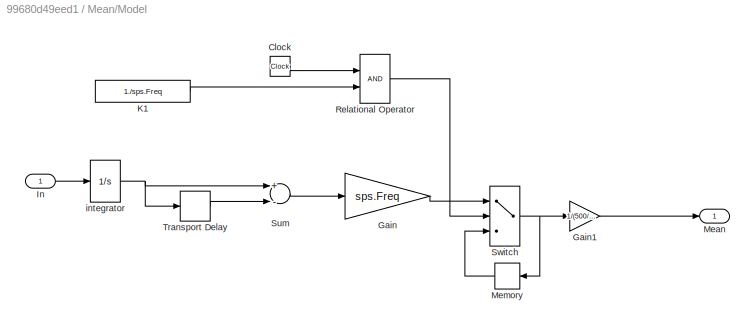
BLOCK [SubSystem] Mean/Model
  Ports = [1, 1]
  RequestExecContextInheritance = off
BLOCK [Clock] Mean/Model/Clock
  Decimation = 1
BLOCK [Gain] Mean/Model/Gain
  Gain = sps.Freq
BLOCK [Gain] Mean/Model/Gain1
  Gain = 1/(500/490)
  OutDataTypeStr = Inherit: Inherit via internal rule
  ParamDataTypeStr = Inherit: Inherit via internal rule
  SaturateOnIntegerOverflow = off
BLOCK [Inport] Mean/Model/In
  IconDisplay = Port number
BLOCK [Constant] Mean/Model/K1
  SampleTime = Ts
  Value = 1./sps.Freq
BLOCK [Outport] Mean/Model/Mean
  IconDisplay = Port number
BLOCK [Memory] Mean/Model/Memory
  InitialCondition = sps.Vinit
BLOCK [RelationalOperator] Mean/Model/Relational Operator
  InputSameDT = off
  OutDataTypeStr = boolean
  Ports = [2, 1]
  SampleTime = Ts
  ZeroCross = off
BLOCK [Sum] Mean/Model/Sum
  Inputs = +-
  Ports = [2, 1]
BLOCK [Switch] Mean/Model/Switch
  SaturateOnIntegerOverflow = off
  Threshold = 0.5
BLOCK [TransportDelay] Mean/Model/Transport Delay
  BufferSize = 2048*4
  DelayTime = 1./sps.Freq
  PadeOrder = 2
  Ports = [1, 1]
BLOCK [Integrator] Mean/Model/integrator
  Ports = [1, 1]
BLOCK [SubSystem] Mean1
  CloseFcn = sps_rtmsupport('CloseFcn', gcbh);
  CopyFcn = sps_rtmsupport('CopyFcn', gcbh);
  DeleteFcn = sps_rtmsupport('DeleteFcn', gcbh);
  DialogController = POWERSYS.PowerSysDialog
  LoadFcn = sps_rtmsupport('LoadFcn', gcbh);
  ModelCloseFcn = sps_rtmsupport('ModelCloseFcn', gcbh);
  NameChangeFcn = sps_rtmsupport('NameChangeFcn', gcbh);
  OpenFcn = sps_rtmsupport('OpenFcn', gcbh, []);
  Ports = [1, 1]
  PostSaveFcn = sps_rtmsupport('PostSaveFcn', gcbh);
  PreCopyFcn = sps_rtmsupport('PreCopyFcn', gcbh);
  PreDeleteFcn = sps_rtmsupport('PreDeleteFcn', gcbh);
  PreSaveFcn = sps_rtmsupport('PreSaveFcn', gcbh);
  RequestExecContextInheritance = off
  StartFcn = sps_rtmsupport('StartFcn', gcbh);
  StopFcn = sps_rtmsupport('StopFcn', gcbh);
  UndoDeleteFcn = sps_rtmsupport('UndoDeleteFcn', gcbh);
BLOCK [Inport] Mean1/In
  IconDisplay = Port number
  SampleTime = Ts
BLOCK [Outport] Mean1/Mean
  IconDisplay = Port number
  SampleTime = Ts
BLOCK [SubSystem] Mean1/Model
  Ports = [1, 1]
  RequestExecContextInheritance = off
BLOCK [Clock] Mean1/Model/Clock
  Decimation = 1
BLOCK [Gain] Mean1/Model/Gain
  Gain = sps.Freq
BLOCK [Inport] Mean1/Model/In
  IconDisplay = Port number
BLOCK [Constant] Mean1/Model/K1
  SampleTime = Ts
  Value = 1./sps.Freq
BLOCK [Outport] Mean1/Model/Mean
  IconDisplay = Port number
BLOCK [Memory] Mean1/Model/Memory
  InitialCondition = sps.Vinit
BLOCK [RelationalOperator] Mean1/Model/Relational Operator
  InputSameDT = off
  OutDataTypeStr = boolean
  Ports = [2, 1]
  SampleTime = Ts
  ZeroCross = off
BLOCK [Sum] Mean1/Model/Sum
  Inputs = +-
  Ports = [2, 1]
BLOCK [Switch] Mean1/Model/Switch
  SaturateOnIntegerOverflow = off
  Threshold = 0.5
BLOCK [TransportDelay] Mean1/Model/Transport Delay
  BufferSize = 2048*4
  DelayTime = 1./sps.Freq
  PadeOrder = 2
  Ports = [1, 1]
BLOCK [Integrator] Mean1/Model/integrator
  Ports = [1, 1]
BLOCK [SubSystem] Mean2
  CloseFcn = sps_rtmsupport('CloseFcn', gcbh);
  CopyFcn = sps_rtmsupport('CopyFcn', gcbh);
  DeleteFcn = sps_rtmsupport('DeleteFcn', gcbh);
  DialogController = POWERSYS.PowerSysDialog
  LoadFcn = sps_rtmsupport('LoadFcn', gcbh);
  ModelCloseFcn = sps_rtmsupport('ModelCloseFcn', gcbh);
  NameChangeFcn = sps_rtmsupport('NameChangeFcn', gcbh);
  OpenFcn = sps_rtmsupport('OpenFcn', gcbh, []);
  Ports = [1, 1]
  PostSaveFcn = sps_rtmsupport('PostSaveFcn', gcbh);
  PreCopyFcn = sps_rtmsupport('PreCopyFcn', gcbh);
  PreDeleteFcn = sps_rtmsupport('PreDeleteFcn', gcbh);
  PreSaveFcn = sps_rtmsupport('PreSaveFcn', gcbh);
  RequestExecContextInheritance = off
  StartFcn = sps_rtmsupport('StartFcn', gcbh);
  StopFcn = sps_rtmsupport('StopFcn', gcbh);
  UndoDeleteFcn = sps_rtmsupport('UndoDeleteFcn', gcbh);
BLOCK [Inport] Mean2/In
  IconDisplay = Port number
  SampleTime = Ts
BLOCK [Outport] Mean2/Mean
  IconDisplay = Port number
  SampleTime = Ts
BLOCK [SubSystem] Mean2/Model
  Ports = [1, 1]
  RequestExecContextInheritance = off
BLOCK [Clock] Mean2/Model/Clock
  Decimation = 1
BLOCK [Gain] Mean2/Model/Gain
  Gain = sps.Freq
BLOCK [Gain] Mean2/Model/Gain3
  Gain = 1/(2000/1.5e-5)
  OutDataTypeStr = Inherit: Inherit via internal rule
  ParamDataTypeStr = Inherit: Inherit via internal rule
  SaturateOnIntegerOverflow = off
BLOCK [Inport] Mean2/Model/In
  IconDisplay = Port number
BLOCK [Constant] Mean2/Model/K1
  SampleTime = Ts
  Value = 1./sps.Freq
BLOCK [Outport] Mean2/Model/Mean
  IconDisplay = Port number
BLOCK [Memory] Mean2/Model/Memory
  InitialCondition = sps.Vinit
BLOCK [RelationalOperator] Mean2/Model/Relational Operator
  InputSameDT = off
  OutDataTypeStr = boolean
  Ports = [2, 1]
  SampleTime = Ts
  ZeroCross = off
BLOCK [Sum] Mean2/Model/Sum
  Inputs = +-
  Ports = [2, 1]
BLOCK [Switch] Mean2/Model/Switch
  SaturateOnIntegerOverflow = off
  Threshold = 0.5
BLOCK [TransportDelay] Mean2/Model/Transport Delay
  BufferSize = 2048*4
  DelayTime = 1./sps.Freq
  PadeOrder = 2
  Ports = [1, 1]
BLOCK [Integrator] Mean2/Model/integrator
  Ports = [1, 1]
BLOCK [Logic] NOT
  AllPortsSameDT = off
  IconShape = distinctive
  Operator = NOT
  OutDataTypeStr = boolean
  Ports = [1, 1]
BLOCK [Logic] NOT1
  AllPortsSameDT = off
  IconShape = distinctive
  Operator = NOT
  OutDataTypeStr = boolean
  Ports = [1, 1]
BLOCK [Logic] NOT2
  AllPortsSameDT = off
  IconShape = distinctive
  Operator = NOT
  OutDataTypeStr = boolean
  Ports = [1, 1]
BLOCK [SubSystem] PHOTOVOLTAIC PANEL
  Ports = [0, 1, 0, 0, 0, 0, 2]
  RequestExecContextInheritance = off
BLOCK [PMIOPort] PHOTOVOLTAIC PANEL/+
  Side = Right
BLOCK [PMIOPort] PHOTOVOLTAIC PANEL/-
  Port = 2
  Side = Right
BLOCK [Reference] PHOTOVOLTAIC PANEL/C2  REF=powerlib/Elements/Series RLC Branch
  AttributesFormatString = \n
  Ports = [0, 0, 0, 0, 0, 1, 1]
  SourceBlock = powerlib/Elements/Series RLC Branch
  SourceProductBaseCode = PS
  SourceProductName = Simscape Power Systems
  SourceType = Series RLC Branch
BLOCK [Constant] PHOTOVOLTAIC PANEL/Constant
  Value = 1000
BLOCK [Constant] PHOTOVOLTAIC PANEL/Constant1
  Value = 25
BLOCK [Outport] PHOTOVOLTAIC PANEL/M
  IconDisplay = Port number
BLOCK [Reference] PHOTOVOLTAIC PANEL/PV Array1  REF=re_lib/Solar/PV Array
  Ports = [2, 1, 0, 0, 0, 0, 2]
  SourceBlock = re_lib/Solar/PV Array
  SourceProductBaseCode = PS
  SourceProductName = Simscape Power Systems
  SourceType = PV array
BLOCK [Reference] PID Controller  REF=simulink/Continuous/PID Controller
  Ports = [1, 1]
  SourceBlock = simulink/Continuous/PID Controller
  SourceProductBaseCode = SL
  SourceProductName = Simulink
  SourceType = PID 1dof
BLOCK [Reference] PID Controller3  REF=simulink/Continuous/PID Controller
  Ports = [1, 1]
  SourceBlock = simulink/Continuous/PID Controller
  SourceProductBaseCode = SL
  SourceProductName = Simulink
  SourceType = PID 1dof
BLOCK [Reference] PID Controller4  REF=simulink/Continuous/PID Controller
  Ports = [1, 1]
  SourceBlock = simulink/Continuous/PID Controller
  SourceProductBaseCode = SL
  SourceProductName = Simulink
  SourceType = PID 1dof
BLOCK [Reference] PID Controller5  REF=simulink/Continuous/PID Controller
  Ports = [1, 1]
  SourceBlock = simulink/Continuous/PID Controller
  SourceProductBaseCode = SL
  SourceProductName = Simulink
  SourceType = PID 1dof
BLOCK [Reference] PID Controller6  REF=simulink/Continuous/PID Controller
  Ports = [1, 1]
  SourceBlock = simulink/Continuous/PID Controller
  SourceProductBaseCode = SL
  SourceProductName = Simulink
  SourceType = PID 1dof
BLOCK [Reference] PID Controller7  REF=simulink/Continuous/PID Controller
  Ports = [1, 1]
  SourceBlock = simulink/Continuous/PID Controller
  SourceProductBaseCode = SL
  SourceProductName = Simulink
  SourceType = PID 1dof
BLOCK [Reference] PWM Generator (DC-DC)  REF=powerlib_meascontrol/Pulse & Signal
Generators/PWM Generator
(DC-DC)
  Ports = [1, 1]
  SourceBlock = powerlib_meascontrol/Pulse & Signal\nGenerators/PWM Generator\n(DC-DC)
  SourceProductBaseCode = PS
  SourceProductName = Simscape Power Systems
  SourceType = PWM Generator (DC-DC)
BLOCK [Reference] PWM Generator (DC-DC)1  REF=powerlib_meascontrol/Pulse & Signal
Generators/PWM Generator
(DC-DC)
  Ports = [1, 1]
  SourceBlock = powerlib_meascontrol/Pulse & Signal\nGenerators/PWM Generator\n(DC-DC)
  SourceProductBaseCode = PS
  SourceProductName = Simscape Power Systems
  SourceType = PWM Generator (DC-DC)
BLOCK [Reference] PWM Generator (DC-DC)2  REF=powerlib_meascontrol/Pulse & Signal
Generators/PWM Generator
(DC-DC)
  Ports = [1, 1]
  SourceBlock = powerlib_meascontrol/Pulse & Signal\nGenerators/PWM Generator\n(DC-DC)
  SourceProductBaseCode = PS
  SourceProductName = Simscape Power Systems
  SourceType = PWM Generator (DC-DC)
BLOCK [SubSystem] SUPER CAPCITOR
  Ports = [0, 0, 0, 0, 0, 2, 2]
  RequestExecContextInheritance = off
BLOCK [PMIOPort] SUPER CAPCITOR/+
  Side = Right
BLOCK [PMIOPort] SUPER CAPCITOR/++
  Port = 3
  Side = Left
BLOCK [PMIOPort] SUPER CAPCITOR/-
  Port = 2
  Side = Right
BLOCK [PMIOPort] SUPER CAPCITOR/--
  Port = 4
  Side = Left
BLOCK [Reference] SUPER CAPCITOR/Current Measurement  REF=powerlib/Measurements/Current Measurement
  Ports = [0, 1, 0, 0, 0, 1, 1]
  SourceBlock = powerlib/Measurements/Current Measurement
  SourceProductBaseCode = PS
  SourceProductName = Simscape Power Systems
  SourceType = Current Measurement
  UserDataPersistent = on
BLOCK [Goto] SUPER CAPCITOR/Goto
  GotoTag = Vsc
  TagVisibility = global
BLOCK [Goto] SUPER CAPCITOR/Goto1
  GotoTag = Isc
  TagVisibility = global
BLOCK [Reference] SUPER CAPCITOR/Supercapacitor3  REF=electricdrivelib/Extra Sources/Supercapacitor
  Ports = [0, 1, 0, 0, 0, 2]
  SourceBlock = electricdrivelib/Extra Sources/Supercapacitor
  SourceProductBaseCode = PS
  SourceProductName = Simscape Power Systems
  SourceType = Supercapacitor
BLOCK [Reference] SUPER CAPCITOR/Voltage Measurement  REF=powerlib/Measurements/Voltage Measurement
  Ports = [0, 1, 0, 0, 0, 2]
  SourceBlock = powerlib/Measurements/Voltage Measurement
  SourceProductBaseCode = PS
  SourceProductName = Simscape Power Systems
  SourceType = Voltage Measurement
  UserDataPersistent = on
BLOCK [Scope] Scope1
  Floating = off
  NumInputPorts = 1
  Ports = [1]
  ScopeSpecificationString = Simulink.scopes.TimeScopeBlockCfg('CurrentConfiguration', extmgr.ConfigurationSet(extmgr.Configuration('Core','General UI',true,'FigureColor',[1 1 1]),extmgr.Configuration('Core','Source UI',true),extmgr.Configuration('Sources','WiredSimulink',true,'DataLoggingVariableName','ScopeData1'),extmgr.Configuration('Visuals','Time Domain',true,'TimeAxisLabels','All','SerializedDisplays',{struct('MinYLimR...<+2550ch>
BLOCK [Scope] Scope2
  Floating = off
  NumInputPorts = 1
  Ports = [1]
  ScopeSpecificationString = Simulink.scopes.TimeScopeBlockCfg('CurrentConfiguration', extmgr.ConfigurationSet(extmgr.Configuration('Core','General UI',true,'FigureColor',[1 1 1]),extmgr.Configuration('Core','Source UI',true),extmgr.Configuration('Sources','WiredSimulink',true,'DataLoggingVariableName','ScopeData2'),extmgr.Configuration('Visuals','Time Domain',true,'TimeAxisLabels','All','SerializedDisplays',{struct('MinYLimR...<+2496ch>
BLOCK [Scope] Scope3
  Floating = off
  NumInputPorts = 1
  Ports = [1]
  ScopeSpecificationString = Simulink.scopes.TimeScopeBlockCfg('CurrentConfiguration', extmgr.ConfigurationSet(extmgr.Configuration('Core','General UI',true,'FigureColor',[1 1 1]),extmgr.Configuration('Core','Source UI',true),extmgr.Configuration('Sources','WiredSimulink',true,'DataLoggingVariableName','ScopeData3'),extmgr.Configuration('Visuals','Time Domain',true,'TimeAxisLabels','All','SerializedDisplays',{struct('MinYLimR...<+2499ch>
BLOCK [Scope] Scope4
  Floating = off
  NumInputPorts = 1
  Ports = [1]
  ScopeSpecificationString = Simulink.scopes.TimeScopeBlockCfg('CurrentConfiguration', extmgr.ConfigurationSet(extmgr.Configuration('Core','General UI',true,'FigureColor',[1 1 1]),extmgr.Configuration('Core','Source UI',true),extmgr.Configuration('Sources','WiredSimulink',true,'DataLoggingVariableName','ScopeData4'),extmgr.Configuration('Visuals','Time Domain',true,'TimeAxisLabels','All','SerializedDisplays',{struct('MinYLimR...<+2518ch>
BLOCK [SubSystem] Stair Generator
  CloseFcn = sps_rtmsupport('CloseFcn', gcbh);
  CopyFcn = sps_rtmsupport('CopyFcn', gcbh);
  DeleteFcn = sps_rtmsupport('DeleteFcn', gcbh);
  DialogController = POWERSYS.PowerSysDialog
  LoadFcn = sps_rtmsupport('LoadFcn', gcbh);
  ModelCloseFcn = sps_rtmsupport('ModelCloseFcn', gcbh);
  NameChangeFcn = sps_rtmsupport('NameChangeFcn', gcbh);
  OpenFcn = sps_rtmsupport('OpenFcn', gcbh, []);
  Ports = [0, 1]
  PostSaveFcn = sps_rtmsupport('PostSaveFcn', gcbh);
  PreCopyFcn = sps_rtmsupport('PreCopyFcn', gcbh);
  PreDeleteFcn = sps_rtmsupport('PreDeleteFcn', gcbh);
  PreSaveFcn = sps_rtmsupport('PreSaveFcn', gcbh);
  RequestExecContextInheritance = off
  StartFcn = sps_rtmsupport('StartFcn', gcbh);
  StopFcn = sps_rtmsupport('StopFcn', gcbh);
  UndoDeleteFcn = sps_rtmsupport('UndoDeleteFcn', gcbh);
BLOCK [SubSystem] Stair Generator/Model
  Ports = [0, 1]
  RequestExecContextInheritance = off
BLOCK [DigitalClock] Stair Generator/Model/Digital Clock
  SampleTime = Ts
BLOCK [Lookup] Stair Generator/Model/Look-Up Table
  InputValues = sps.tv
  SampleTime = Ts
  Table = sps.opv
BLOCK [Outport] Stair Generator/Model/Out
  IconDisplay = Port number
  InitialOutput = 0
BLOCK [Outport] Stair Generator/Out
  IconDisplay = Port number
  SampleTime = Ts
BLOCK [Sum] Sum
  IconShape = round
  InputSameDT = off
  Inputs = |+-
  OutDataTypeStr = Inherit: Inherit via internal rule
  Ports = [2, 1]
  SaturateOnIntegerOverflow = off
BLOCK [Sum] Sum2
  IconShape = round
  InputSameDT = off
  Inputs = |+-
  OutDataTypeStr = Inherit: Inherit via internal rule
  Ports = [2, 1]
  SaturateOnIntegerOverflow = off
BLOCK [Sum] Sum3
  IconShape = round
  InputSameDT = off
  Inputs = |+-
  OutDataTypeStr = Inherit: Inherit via internal rule
  Ports = [2, 1]
  SaturateOnIntegerOverflow = off
BLOCK [Sum] Sum4
  IconShape = round
  InputSameDT = off
  Inputs = |+-
  OutDataTypeStr = Inherit: Inherit via internal rule
  Ports = [2, 1]
  SaturateOnIntegerOverflow = off
BLOCK [Sum] Sum5
  IconShape = round
  InputSameDT = off
  Inputs = |+-
  OutDataTypeStr = Inherit: Inherit via internal rule
  Ports = [2, 1]
  SaturateOnIntegerOverflow = off
BLOCK [Sum] Sum6
  IconShape = round
  InputSameDT = off
  Inputs = |+-
  OutDataTypeStr = Inherit: Inherit via internal rule
  Ports = [2, 1]
  SaturateOnIntegerOverflow = off
BLOCK [SubSystem] TRAIN LOAD
  Ports = [0, 0, 0, 0, 0, 0, 2]
  RequestExecContextInheritance = off
BLOCK [PMIOPort] TRAIN LOAD/+
  Side = Right
BLOCK [PMIOPort] TRAIN LOAD/-
  Port = 2
  Side = Right
BLOCK [Reference] TRAIN LOAD/R  REF=powerlib/Elements/Series RLC Branch
  Ports = [0, 0, 0, 0, 0, 1, 1]
  SourceBlock = powerlib/Elements/Series RLC Branch
  SourceProductBaseCode = PS
  SourceProductName = Simscape Power Systems
  SourceType = Series RLC Branch
BLOCK [SubSystem] V
  CloseFcn = sps_rtmsupport('CloseFcn',gcbh);
  CopyFcn = sps_rtmsupport('CopyFcn',gcbh); powericon('psbloadfunction',gcb,'Measurement Block','UpdateGotoTag');
  DeleteFcn = sps_rtmsupport('DeleteFcn',gcbh);
  DialogController = POWERSYS.PowerSysDialog
  LoadFcn = sps_rtmsupport('LoadFcn',gcbh);
  ModelCloseFcn = sps_rtmsupport('ModelCloseFcn',gcbh);
  NameChangeFcn = sps_rtmsupport('NameChangeFcn',gcbh);powericon('SetNewGotoTag',[gcb,'/source'],-2);
  OpenFcn = sps_rtmsupport('OpenFcn',gcbh, [1 -2]);
  Ports = [0, 1, 0, 0, 0, 2]
  PostSaveFcn = sps_rtmsupport('PostSaveFcn',gcbh);
  PreCopyFcn = sps_rtmsupport('PreCopyFcn',gcbh);
  PreDeleteFcn = sps_rtmsupport('PreDeleteFcn',gcbh);
  PreSaveFcn = sps_rtmsupport('PreSaveFcn',gcbh);
  RequestExecContextInheritance = off
  StartFcn = sps_rtmsupport('StartFcn',gcbh);
  StopFcn = sps_rtmsupport('StopFcn',gcbh);
  UndoDeleteFcn = sps_rtmsupport('UndoDeleteFcn',gcbh);
  UserDataPersistent = on
BLOCK [PMIOPort] V/+
  Side = Left
BLOCK [PMIOPort] V/-
  Port = 2
  Side = Left
BLOCK [Reference] V/Model  REF=spsMeasurementModel/Complex
  Ports = [1, 1]
  SourceBlock = spsMeasurementModel/Complex
  SourceType = SubSystem
BLOCK [Reference] V/VoltageMeasurement  REF=powerlib/Measurements/Voltage Measurement/VoltageMeasurement
  Ports = [0, 0, 0, 0, 0, 1, 1]
  SourceBlock = powerlib/Measurements/Voltage Measurement/VoltageMeasurement
  SourceProductBaseCode = PS
  SourceProductName = Simscape Power Systems
  SourceType = InnerPowersysBlock
BLOCK [Gain] V/do not delete this gain
  Gain = 500/490
  OutDataTypeStr = Inherit: Inherit via internal rule
  ParamDataTypeStr = Inherit: Inherit via internal rule
  SaturateOnIntegerOverflow = off
BLOCK [From] V/source
  GotoTag = T16_1398_560330819292
  TagVisibility = global
BLOCK [Outport] V/v
  IconDisplay = Port number
  InitialOutput = 0
BLOCK [Reference] Voltage Measurement  REF=powerlib/Measurements/Voltage Measurement
  Ports = [0, 1, 0, 0, 0, 2]
  SourceBlock = powerlib/Measurements/Voltage Measurement
  SourceProductBaseCode = PS
  SourceProductName = Simscape Power Systems
  SourceType = Voltage Measurement
  UserDataPersistent = on
BLOCK [Reference] Voltage Measurement3  REF=powerlib/Measurements/Voltage Measurement
  Ports = [0, 1, 0, 0, 0, 2]
  SourceBlock = powerlib/Measurements/Voltage Measurement
  SourceProductBaseCode = PS
  SourceProductName = Simscape Power Systems
  SourceType = Voltage Measurement
  UserDataPersistent = on
BLOCK [Reference] Voltage Measurement5  REF=powerlib/Measurements/Voltage Measurement
  Ports = [0, 1, 0, 0, 0, 2]
  SourceBlock = powerlib/Measurements/Voltage Measurement
  SourceProductBaseCode = PS
  SourceProductName = Simscape Power Systems
  SourceType = Voltage Measurement
  UserDataPersistent = on
BLOCK [Reference] Voltage Measurement6  REF=powerlib/Measurements/Voltage Measurement
  Ports = [0, 1, 0, 0, 0, 2]
  SourceBlock = powerlib/Measurements/Voltage Measurement
  SourceProductBaseCode = PS
  SourceProductName = Simscape Power Systems
  SourceType = Voltage Measurement
  UserDataPersistent = on
BLOCK [Reference] Voltage Measurement7  REF=powerlib/Measurements/Voltage Measurement
  Ports = [0, 1, 0, 0, 0, 2]
  SourceBlock = powerlib/Measurements/Voltage Measurement
  SourceProductBaseCode = PS
  SourceProductName = Simscape Power Systems
  SourceType = Voltage Measurement
  UserDataPersistent = on
BLOCK [Reference] Voltage Measurement8  REF=powerlib/Measurements/Voltage Measurement
  Ports = [0, 1, 0, 0, 0, 2]
  SourceBlock = powerlib/Measurements/Voltage Measurement
  SourceProductBaseCode = PS
  SourceProductName = Simscape Power Systems
  SourceType = Voltage Measurement
  UserDataPersistent = on
BLOCK [SubSystem] WIND
  Ports = [0, 0, 0, 0, 0, 0, 3]
  RequestExecContextInheritance = off
BLOCK [PMIOPort] WIND/A
  Side = Right
BLOCK [PMIOPort] WIND/B
  Port = 2
  Side = Right
BLOCK [BusSelector] WIND/Bus Selector
  OutputAsBus = off
  OutputSignals = Rotor speed wm (rad/s)
  Ports = [1, 1]
BLOCK [PMIOPort] WIND/C
  Port = 3
  Side = Right
BLOCK [Gain] WIND/Gain
  Gain = 30/pi
  OutDataTypeStr = Inherit: Inherit via internal rule
  ParamDataTypeStr = Inherit: Inherit via internal rule
  SaturateOnIntegerOverflow = off
BLOCK [Reference] WIND/Permanent Magnet Synchronous Machine1  REF=powerlib/Machines/Permanent Magnet
Synchronous Machine
  Ports = [1, 1, 0, 0, 0, 3]
  SourceBlock = powerlib/Machines/Permanent Magnet\nSynchronous Machine
  SourceProductBaseCode = PS
  SourceType = Permanent Magnet Synchronous Machine
BLOCK [SubSystem] WIND/Subsystem1
  Ports = [1, 1]
  RequestExecContextInheritance = off
BLOCK [Constant] WIND/Subsystem1/Constant
  Value = 0
BLOCK [Constant] WIND/Subsystem1/Constant1
  Value = 12
BLOCK [Gain] WIND/Subsystem1/Gain1
  Gain = 1/2620
  OutDataTypeStr = Inherit: Inherit via internal rule
  ParamDataTypeStr = Inherit: Inherit via internal rule
  SaturateOnIntegerOverflow = off
BLOCK [Gain] WIND/Subsystem1/Gain2
  Gain = 8500/152.89
  OutDataTypeStr = Inherit: Inherit via internal rule
  ParamDataTypeStr = Inherit: Inherit via internal rule
  SaturateOnIntegerOverflow = off
BLOCK [Inport] WIND/Subsystem1/Generator speed (pu)
  IconDisplay = Port number
BLOCK [Outport] WIND/Subsystem1/Out1
  IconDisplay = Port number
  VectorParamsAs1DForOutWhenUnconnected = on
BLOCK [Scope] WIND/Subsystem1/Scope
  Floating = off
  NumInputPorts = 1
  Ports = [1]
  ScopeSpecificationString = Simulink.scopes.TimeScopeBlockCfg('CurrentConfiguration', extmgr.ConfigurationSet(extmgr.Configuration('Core','General UI',true),extmgr.Configuration('Core','Source UI',true),extmgr.Configuration('Sources','WiredSimulink',true,'DataLoggingVariableName','ScopeData3'),extmgr.Configuration('Visuals','Time Domain',true,'SerializedDisplays',{struct('MinYLimReal','-351.30983','MaxYLimReal','3161.78849',...<+1468ch>
BLOCK [Scope] WIND/Subsystem1/Scope1
  Floating = off
  NumInputPorts = 1
  Ports = [1]
  ScopeSpecificationString = Simulink.scopes.TimeScopeBlockCfg('CurrentConfiguration', extmgr.ConfigurationSet(extmgr.Configuration('Core','General UI',true),extmgr.Configuration('Core','Source UI',true),extmgr.Configuration('Sources','WiredSimulink',true,'DataLoggingVariableName','ScopeData4'),extmgr.Configuration('Visuals','Time Domain',true,'SerializedDisplays',{struct('MinYLimReal','-0.13409','MaxYLimReal','1.20679','YLab...<+1389ch>
BLOCK [Scope] WIND/Subsystem1/Scope2
  Floating = off
  NumInputPorts = 1
  Ports = [1]
  ScopeSpecificationString = Simulink.scopes.TimeScopeBlockCfg('CurrentConfiguration', extmgr.ConfigurationSet(extmgr.Configuration('Core','General UI',true),extmgr.Configuration('Core','Source UI',true),extmgr.Configuration('Sources','WiredSimulink',true,'DataLoggingVariableName','ScopeData5'),extmgr.Configuration('Visuals','Time Domain',true,'SerializedDisplays',{struct('MinYLimReal','-62.07015','MaxYLimReal','19.95146','YL...<+1451ch>
BLOCK [Reference] WIND/Subsystem1/Wind Turbine  REF=re_lib/Wind Generation/Wind Turbine
  Ports = [3, 1]
  SourceBlock = re_lib/Wind Generation/Wind Turbine
  SourceProductBaseCode = PS
  SourceType = Wind Turbine
BLOCK [Reference] WIND/Three-Phase V-I Measurement1  REF=powerlib/Measurements/Three-Phase
V-I Measurement
  Ports = [0, 0, 0, 0, 0, 3, 3]
  SourceBlock = powerlib/Measurements/Three-Phase\nV-I Measurement
  SourceProductBaseCode = PS
  SourceType = Three-Phase VI Measurement
BLOCK [Reference] powergui  REF=powerlib/powergui
  Ports = []
  Priority = 1
  SourceBlock = powerlib/powergui
  SourceProductBaseCode = PS
  SourceProductName = Simscape Power Systems
  SourceType = PSB option menu block
ANNOTATION (root): STATION CONFIGURATION
ANNOTATION (root): TRAIN CONFIGURATION
ANNOTATION BATTERY/Battery: Internal Resistance
ANNOTATION MPPT/MPPT: MPPT Controller
ANNOTATION MPPT/MPPT: Maximum power point tracking by incremental conductance method + Integral regulator ------------------------------------------------------------------------------------------------------------- Maximum power point is obtained when dP/dV=0 where P= V*I -> d(V*I)/dV = I + V*dI/dV = 0 -> dI/dV = -I/V The integral regulator minimizes the error (dI/dV + I/V) Regulator output = Duty cycle correction
ANNOTATION WIND: PMSG1
LINE BATTERY/Battery:1 -> BATTERY/Bus Selector:1
LINE BATTERY/Bus Selector:1 -> BATTERY/Goto19:1
LINE Bus Selector:1 -> MPPT:1
LINE Bus Selector:2 -> MPPT:2
LINE Constant1:1 -> Sum3:1
LINE Constant2:1 -> Sum4:1
LINE Constant:1 -> Sum:1
LINE Current Measurement11:1 -> Goto17:1
LINE Current Measurement13:1 -> Goto20:1
LINE Current Measurement1:1 -> Goto5:1
LINE Current Measurement2:1 -> Goto3:1
LINE Current Measurement3:1 -> Goto4:1
LINE Current Measurement4:1 -> Goto6:1
LINE Current Measurement5:1 -> Goto8:1
LINE Current Measurement6:1 -> Goto10:1
LINE Current Measurement8:1 -> Goto13:1
LINE Current Measurement9:1 -> Goto14:1
LINE Current Measurement:1 -> Goto1:1
LINE From11:1 -> Scope1:1
LINE From12:1 -> Scope4:1
LINE From13:1 -> Scope3:1
LINE From1:1 -> Sum2:2
LINE From2:1 -> Mean1:1
LINE From3:1 -> Sum6:2
LINE From4:1 -> Mean:1
LINE From5:1 -> Sum5:2
NET From6:1 -> IGBT//Diode5:1, NOT:1
NET From7:1 -> IGBT//Diode3:1, NOT1:1
NET From8:1 -> IGBT//Diode1:1, NOT2:1
LINE From9:1 -> Scope2:1
LINE From:1 -> Mean2:1
LINE I1:1 -> Goto12:1
LINE I:1 -> Goto16:1
LINE MPPT/Constant:1 -> MPPT/MPPT:3
LINE MPPT/I_PV:1 -> MPPT/MPPT:2
LINE MPPT/MPPT/Add1:1 -> MPPT/MPPT/Switch:1
LINE MPPT/MPPT/Add2:1 -> MPPT/MPPT/div1:1
NET MPPT/MPPT/Add3:1 -> MPPT/MPPT/Compare To Zero:1, MPPT/MPPT/Switch2:1
LINE MPPT/MPPT/Compare To Zero:1 -> MPPT/MPPT/Switch2:2
LINE MPPT/MPPT/Constant1:1 -> MPPT/MPPT/Switch1:3
LINE MPPT/MPPT/Constant2:1 -> MPPT/MPPT/Switch2:3
LINE MPPT/MPPT/Constant:1 -> MPPT/MPPT/Switch:3
LINE MPPT/MPPT/Dead Zone:1 -> MPPT/MPPT/Ki Gain:1
LINE MPPT/MPPT/Discrete-Time Integrator:1 -> MPPT/MPPT/Switch1:1
NET MPPT/MPPT/I_PV:1 -> MPPT/MPPT/Add2:1, MPPT/MPPT/Unit Delay2:1, MPPT/MPPT/div2:1
LINE MPPT/MPPT/Ki Gain:1 -> MPPT/MPPT/Discrete-Time Integrator:1
LINE MPPT/MPPT/Saturation:1 -> MPPT/MPPT/div2:2
LINE MPPT/MPPT/Switch1:1 -> MPPT/MPPT/Delta_D:1
LINE MPPT/MPPT/Switch2:1 -> MPPT/MPPT/div1:2
LINE MPPT/MPPT/Switch:1 -> MPPT/MPPT/Dead Zone:1
LINE MPPT/MPPT/Unit Delay1:1 -> MPPT/MPPT/Add3:2
LINE MPPT/MPPT/Unit Delay2:1 -> MPPT/MPPT/Add2:2
NET MPPT/MPPT/V_PV:1 -> MPPT/MPPT/Add3:1, MPPT/MPPT/Saturation:1, MPPT/MPPT/Unit Delay1:1
NET MPPT/MPPT/div1:1 -> MPPT/MPPT/Add1:1, MPPT/MPPT/Goto2:1
NET MPPT/MPPT/div2:1 -> MPPT/MPPT/Add1:2, MPPT/MPPT/Goto3:1
NET MPPT/MPPT/on//off:1 -> MPPT/MPPT/Switch1:2, MPPT/MPPT/Switch:2
LINE MPPT/MPPT:1 -> MPPT/Pulse Generator:1
LINE MPPT/Pulse Generator/D:1 -> MPPT/Pulse Generator/Relational Operator:2
LINE MPPT/Pulse Generator/Relational Operator:1 -> MPPT/Pulse Generator/Pulses:1
LINE MPPT/Pulse Generator/Repeating Sequence:1 -> MPPT/Pulse Generator/Relational Operator:1
LINE MPPT/Pulse Generator:1 -> MPPT/Pulses:1
LINE MPPT/V_PV:1 -> MPPT/MPPT:1
LINE MPPT:1 -> IGBT//Diode:1
LINE Mean1:1 -> Sum3:2
LINE Mean2:1 -> Sum:2
LINE Mean:1 -> Sum4:2
LINE NOT1:1 -> IGBT//Diode4:1
LINE NOT2:1 -> IGBT//Diode2:1
LINE NOT:1 -> IGBT//Diode6:1
LINE PHOTOVOLTAIC PANEL/Constant1:1 -> PHOTOVOLTAIC PANEL/PV Array1:2
LINE PHOTOVOLTAIC PANEL/Constant:1 -> PHOTOVOLTAIC PANEL/PV Array1:1
LINE PHOTOVOLTAIC PANEL/PV Array1:1 -> PHOTOVOLTAIC PANEL/M:1
LINE PHOTOVOLTAIC PANEL:1 -> Bus Selector:1
LINE PID Controller3:1 -> Sum6:1
LINE PID Controller4:1 -> Sum5:1
LINE PID Controller5:1 -> PWM Generator (DC-DC)2:1
LINE PID Controller6:1 -> PWM Generator (DC-DC):1
LINE PID Controller7:1 -> PWM Generator (DC-DC)1:1
LINE PID Controller:1 -> Sum2:1
LINE PWM Generator (DC-DC)1:1 -> Goto22:1
LINE PWM Generator (DC-DC)2:1 -> Goto23:1
LINE PWM Generator (DC-DC):1 -> Goto21:1
LINE SUPER CAPCITOR/Current Measurement:1 -> SUPER CAPCITOR/Goto1:1
LINE SUPER CAPCITOR/Voltage Measurement:1 -> SUPER CAPCITOR/Goto:1
NET Stair Generator:1 -> Breaker1:1, Breaker:1
LINE Sum2:1 -> PID Controller6:1
LINE Sum3:1 -> PID Controller3:1
LINE Sum4:1 -> PID Controller4:1
LINE Sum5:1 -> PID Controller5:1
LINE Sum6:1 -> PID Controller7:1
LINE Sum:1 -> PID Controller:1
LINE V:1 -> Goto11:1
LINE Voltage Measurement3:1 -> Goto2:1
LINE Voltage Measurement5:1 -> Goto15:1
LINE Voltage Measurement6:1 -> Goto18:1
LINE Voltage Measurement7:1 -> Goto7:1
LINE Voltage Measurement8:1 -> Goto9:1
LINE Voltage Measurement:1 -> Goto:1
LINE WIND/Bus Selector:1 -> WIND/Gain:1
LINE WIND/Gain:1 -> WIND/Subsystem1:1
LINE WIND/Permanent Magnet Synchronous Machine1:1 -> WIND/Bus Selector:1
LINE WIND/Subsystem1/Constant1:1 -> WIND/Subsystem1/Wind Turbine:3
LINE WIND/Subsystem1/Constant:1 -> WIND/Subsystem1/Wind Turbine:2
NET WIND/Subsystem1/Gain1:1 -> WIND/Subsystem1/Scope1:1, WIND/Subsystem1/Wind Turbine:1
NET WIND/Subsystem1/Gain2:1 -> WIND/Subsystem1/Out1:1, WIND/Subsystem1/Scope2:1
NET WIND/Subsystem1/Generator speed (pu):1 -> WIND/Subsystem1/Gain1:1, WIND/Subsystem1/Scope:1
LINE WIND/Subsystem1/Wind Turbine:1 -> WIND/Subsystem1/Gain2:1
LINE WIND/Subsystem1:1 -> WIND/Permanent Magnet Synchronous Machine1:1
PNET net1: AC//DC/+:RConn1 -- AC//DC/Series RLC Branch1:LConn1 -- AC//DC/Universal Bridge:RConn1
PNET net2: AC//DC/-:RConn1 -- AC//DC/Series RLC Branch1:RConn1 -- AC//DC/Universal Bridge:RConn2
PLINE AC//DC/A:RConn1 -- AC//DC/Universal Bridge:LConn1
PLINE AC//DC/B:RConn1 -- AC//DC/Universal Bridge:LConn2
PLINE AC//DC/C:RConn1 -- AC//DC/Universal Bridge:LConn3
PLINE AC//DC:LConn1 -- WIND:RConn1
PLINE AC//DC:LConn2 -- WIND:RConn2
PLINE AC//DC:LConn3 -- WIND:RConn3
PNET net3: AC//DC:RConn1 -- C2:LConn1 -- C3:LConn1 -- I:RConn1 -- L2:LConn1 -- Voltage Measurement5:LConn1
PNET net4: AC//DC:RConn2 -- Breaker1:LConn1 -- C12:RConn1 -- C1:RConn1 -- C2:RConn1 -- C3:RConn1 -- IGBT//Diode1:RConn1 -- IGBT//Diode:RConn1 -- PHOTOVOLTAIC PANEL:RConn2 -- Voltage Measurement5:LConn2 -- Voltage Measurement6:LConn2
PNET net5: BATTERY/++:RConn1 -- BATTERY/+:RConn1 -- BATTERY/Battery:LConn1
PNET net6: BATTERY/--:RConn1 -- BATTERY/-:RConn1 -- BATTERY/Battery:LConn2
PLINE BATTERY:LConn1 -- C5:RConn1
PLINE BATTERY:LConn2 -- C4:RConn1
PNET net7: BATTERY:RConn1 -- Breaker:RConn1 -- V:LConn1
PNET net8: BATTERY:RConn2 -- Breaker1:RConn1 -- V:LConn2
PNET net9: Breaker:LConn1 -- C12:LConn1 -- Current Measurement8:RConn1 -- I1:LConn1
PLINE C10:LConn1 -- Current Measurement2:RConn1
PNET net10: C10:RConn1 -- C11:RConn1 -- IGBT//Diode5:RConn1 -- SUPER CAPCITOR:LConn2 -- TRAIN LOAD:RConn2 -- Voltage Measurement3:LConn2 -- Voltage Measurement:LConn2
PNET net11: C11:LConn1 -- L4:LConn1 -- SUPER CAPCITOR:LConn1
PLINE C1:LConn1 -- I1:RConn1
PNET net12: C4:LConn1 -- C8:RConn1 -- C9:RConn1 -- IGBT//Diode3:RConn1 -- SUPER CAPCITOR:RConn2 -- Voltage Measurement7:LConn2 -- Voltage Measurement8:LConn2
PLINE C5:LConn1 -- Current Measurement6:RConn1
PNET net13: C8:LConn1 -- Current Measurement6:LConn1 -- IGBT//Diode4:RConn1 -- Voltage Measurement8:LConn1
PNET net14: C9:LConn1 -- Current Measurement4:LConn1 -- L3:LConn1 -- Voltage Measurement7:LConn1
PLINE Current Measurement11:LConn1 -- L1:RConn1
PNET net15: Current Measurement11:RConn1 -- Diode1:LConn1 -- IGBT//Diode:LConn1
PNET net16: Current Measurement13:LConn1 -- PHOTOVOLTAIC PANEL:RConn1 -- Voltage Measurement6:LConn1
PLINE Current Measurement13:RConn1 -- L1:LConn1
PLINE Current Measurement1:LConn1 -- IGBT//Diode6:RConn1
PNET net17: Current Measurement1:RConn1 -- Current Measurement2:LConn1 -- Current Measurement3:LConn1 -- Voltage Measurement3:LConn1
PLINE Current Measurement3:RConn1 -- TRAIN LOAD:RConn1
PLINE Current Measurement4:RConn1 -- SUPER CAPCITOR:RConn1
PLINE Current Measurement5:LConn1 -- L3:RConn1
PNET net18: Current Measurement5:RConn1 -- IGBT//Diode3:LConn1 -- IGBT//Diode4:LConn1
PLINE Current Measurement8:LConn1 -- IGBT//Diode2:RConn1
PLINE Current Measurement9:LConn1 -- L2:RConn1
PNET net19: Current Measurement9:RConn1 -- IGBT//Diode1:LConn1 -- IGBT//Diode2:LConn1
PLINE Current Measurement:LConn1 -- L4:RConn1
PNET net20: Current Measurement:RConn1 -- IGBT//Diode5:LConn1 -- IGBT//Diode6:LConn1 -- Voltage Measurement:LConn1
PLINE Diode1:RConn1 -- I:LConn1
PNET net21: PHOTOVOLTAIC PANEL/+:RConn1 -- PHOTOVOLTAIC PANEL/C2:LConn1 -- PHOTOVOLTAIC PANEL/PV Array1:RConn1
PNET net22: PHOTOVOLTAIC PANEL/-:RConn1 -- PHOTOVOLTAIC PANEL/C2:RConn1 -- PHOTOVOLTAIC PANEL/PV Array1:RConn2
PLINE SUPER CAPCITOR/++:RConn1 -- SUPER CAPCITOR/Current Measurement:RConn1
PNET net23: SUPER CAPCITOR/+:RConn1 -- SUPER CAPCITOR/Current Measurement:LConn1 -- SUPER CAPCITOR/Supercapacitor3:LConn1 -- SUPER CAPCITOR/Voltage Measurement:LConn1
PNET net24: SUPER CAPCITOR/--:RConn1 -- SUPER CAPCITOR/-:RConn1 -- SUPER CAPCITOR/Supercapacitor3:LConn2 -- SUPER CAPCITOR/Voltage Measurement:LConn2
PLINE TRAIN LOAD/+:RConn1 -- TRAIN LOAD/R:LConn1
PLINE TRAIN LOAD/-:RConn1 -- TRAIN LOAD/R:RConn1
PLINE WIND/A:RConn1 -- WIND/Three-Phase V-I Measurement1:RConn1
PLINE WIND/B:RConn1 -- WIND/Three-Phase V-I Measurement1:RConn2
PLINE WIND/C:RConn1 -- WIND/Three-Phase V-I Measurement1:RConn3
PLINE WIND/Permanent Magnet Synchronous Machine1:LConn1 -- WIND/Three-Phase V-I Measurement1:LConn1
PLINE WIND/Permanent Magnet Synchronous Machine1:LConn2 -- WIND/Three-Phase V-I Measurement1:LConn2
PLINE WIND/Permanent Magnet Synchronous Machine1:LConn3 -- WIND/Three-Phase V-I Measurement1:LConn3
note: NET lines group one-source signal fan-out (src -> all destinations, sorted); 1:1 wires keep LINE; PNET lines group multi-terminal physical nets as a canonical sorted terminal list (undirected conserving connections); 2-terminal nets keep the pairwise PLINE form
